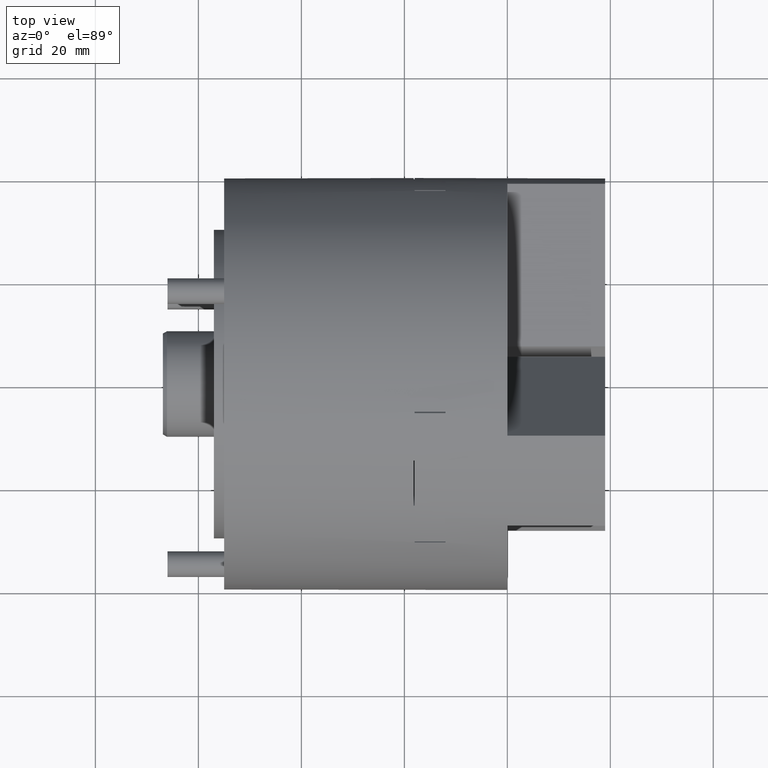
[diagram: clean part render]
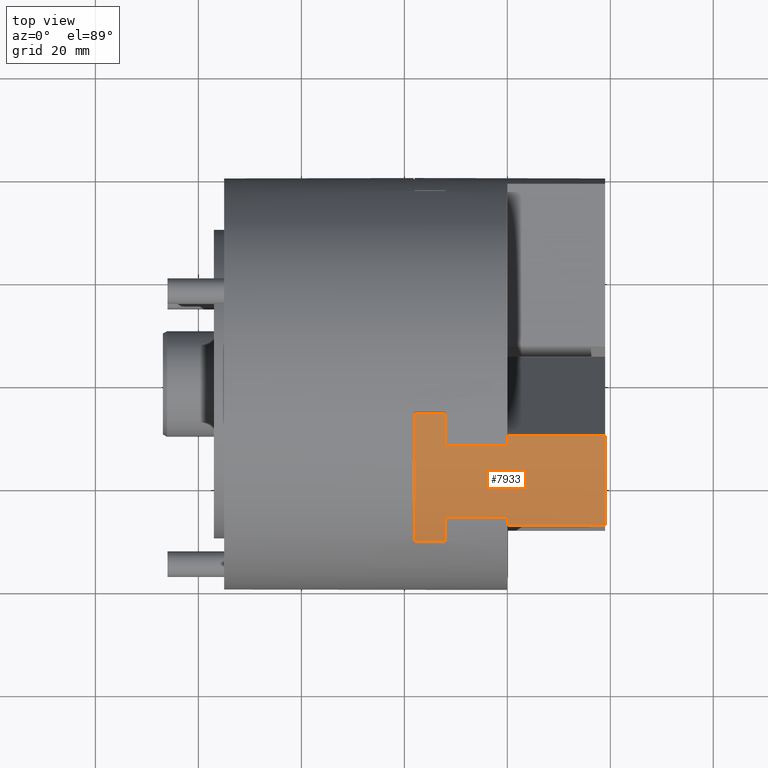
[diagram: same view with one face highlighted and labeled with its STEP entity id]
A machine part, top view. The second image highlights one B-rep face of the part: STEP entity #7933.
In plain terms, the highlighted cylindrical surface (partial cylindrical patch) has radius 40 mm, axis along (-1, 0, -0).
Its self-contained STEP definition (entity closure, byte-faithful):
#133=CYLINDRICAL_SURFACE('',#8600,40.);
#366=CIRCLE('',#8601,40.);
#367=CIRCLE('',#8602,40.);
#368=CIRCLE('',#8603,40.);
#369=CIRCLE('',#8604,40.);
#370=CIRCLE('',#8605,40.);
#371=CIRCLE('',#8606,40.);
#1646=ORIENTED_EDGE('',*,*,#3299,.T.);
#1647=ORIENTED_EDGE('',*,*,#3300,.T.);
#1648=ORIENTED_EDGE('',*,*,#3301,.T.);
#1649=ORIENTED_EDGE('',*,*,#3302,.T.);
#1650=ORIENTED_EDGE('',*,*,#3303,.F.);
#1651=ORIENTED_EDGE('',*,*,#3304,.F.);
#1652=ORIENTED_EDGE('',*,*,#3264,.T.);
#1653=ORIENTED_EDGE('',*,*,#3305,.T.);
#1654=ORIENTED_EDGE('',*,*,#3306,.T.);
#1655=ORIENTED_EDGE('',*,*,#3307,.T.);
#1656=ORIENTED_EDGE('',*,*,#3298,.T.);
#1657=ORIENTED_EDGE('',*,*,#3308,.T.);
#3264=EDGE_CURVE('',#4155,#4154,#4937,.T.);
#3298=EDGE_CURVE('',#4177,#4180,#4969,.T.);
#3299=EDGE_CURVE('',#4181,#4182,#4970,.T.);
#3300=EDGE_CURVE('',#4182,#4183,#366,.T.);
#3301=EDGE_CURVE('',#4183,#4184,#4971,.T.);
#3302=EDGE_CURVE('',#4184,#4185,#367,.T.);
#3303=EDGE_CURVE('',#4186,#4185,#4972,.T.);
#3304=EDGE_CURVE('',#4155,#4186,#368,.T.);
#3305=EDGE_CURVE('',#4154,#4187,#369,.T.);
#3306=EDGE_CURVE('',#4187,#4188,#4973,.T.);
#3307=EDGE_CURVE('',#4188,#4177,#370,.T.);
#3308=EDGE_CURVE('',#4180,#4181,#371,.T.);
#4154=VERTEX_POINT('',#12789);
#4155=VERTEX_POINT('',#12791);
#4177=VERTEX_POINT('',#12857);
#4180=VERTEX_POINT('',#12863);
#4181=VERTEX_POINT('',#12867);
#4182=VERTEX_POINT('',#12868);
#4183=VERTEX_POINT('',#12870);
#4184=VERTEX_POINT('',#12872);
#4185=VERTEX_POINT('',#12874);
#4186=VERTEX_POINT('',#12876);
#4187=VERTEX_POINT('',#12879);
#4188=VERTEX_POINT('',#12881);
#4937=LINE('',#12790,#5633);
#4969=LINE('',#12864,#5665);
#4970=LINE('',#12866,#5666);
#4971=LINE('',#12871,#5667);
#4972=LINE('',#12875,#5668);
#4973=LINE('',#12880,#5669);
#5633=VECTOR('',#10235,1000.);
#5665=VECTOR('',#10283,1000.);
#5666=VECTOR('',#10286,1000.);
#5667=VECTOR('',#10289,1000.);
#5668=VECTOR('',#10292,1000.);
#5669=VECTOR('',#10297,1000.);
#6156=EDGE_LOOP('',(#1646,#1647,#1648,#1649,#1650,#1651,#1652,#1653,#1654,
#1655,#1656,#1657));
#6895=FACE_BOUND('',#6156,.T.);
#7933=ADVANCED_FACE('',(#6895),#133,.T.);
#8600=AXIS2_PLACEMENT_3D('',#12865,#10284,#10285);
#8601=AXIS2_PLACEMENT_3D('',#12869,#10287,#10288);
#8602=AXIS2_PLACEMENT_3D('',#12873,#10290,#10291);
#8603=AXIS2_PLACEMENT_3D('',#12877,#10293,#10294);
#8604=AXIS2_PLACEMENT_3D('',#12878,#10295,#10296);
#8605=AXIS2_PLACEMENT_3D('',#12882,#10298,#10299);
#8606=AXIS2_PLACEMENT_3D('',#12883,#10300,#10301);
#10235=DIRECTION('',(-1.,3.94743360908282E-16,1.31757051362039E-16));
#10283=DIRECTION('',(-1.,6.10137973180356E-17,-1.08995869172918E-16));
#10284=DIRECTION('',(-1.,6.10137973180356E-17,-1.08995869172918E-16));
#10285=DIRECTION('',(-1.65843612768594E-18,0.866025403784436,0.500000000000004));
#10286=DIRECTION('',(1.,-6.10137973180356E-17,1.08995869172918E-16));
#10287=DIRECTION('',(-1.,1.81198965217008E-16,-3.96069301338454E-17));
#10288=DIRECTION('',(-1.3010426069826E-16,-0.866025403784436,-0.500000000000004));
#10289=DIRECTION('',(1.,-6.10137973180356E-17,1.08995869172918E-16));
#10290=DIRECTION('',(1.,-3.94743360908282E-16,-1.31757051362039E-16));
#10291=DIRECTION('',(-4.0773630420284E-16,-0.866025403784436,-0.500000000000004));
#10292=DIRECTION('',(-1.,3.94743360908282E-16,1.31757051362039E-16));
#10293=DIRECTION('',(1.,-3.94743360908282E-16,-1.31757051362039E-16));
#10294=DIRECTION('',(-4.33680868994202E-16,-0.866025403784436,-0.500000000000004));
#10295=DIRECTION('',(1.,-3.94743360908282E-16,-1.31757051362039E-16));
#10296=DIRECTION('',(-4.0773630420284E-16,-0.866025403784436,-0.500000000000004));
#10297=DIRECTION('',(-1.,6.10137973180356E-17,-1.08995869172918E-16));
#10298=DIRECTION('',(-1.,-5.91713705809367E-17,-1.78384808211991E-16));
#10299=DIRECTION('',(-1.3010426069826E-16,0.866025403784436,0.500000000000004));
#10300=DIRECTION('',(1.,-6.10137973180356E-17,1.08995869172918E-16));
#10301=DIRECTION('',(0.,-0.866025403784436,-0.500000000000004));
#12789=CARTESIAN_POINT('',(1.4032071523759E-14,-10.7047785388606,38.5412203130792));
#12790=CARTESIAN_POINT('',(19.,-10.7047785388606,38.5412203130792));
#12791=CARTESIAN_POINT('',(19.,-10.7047785388606,38.5412203130792));
#12857=CARTESIAN_POINT('',(-12.,-6.34706738425983,39.493443188601));
#12863=CARTESIAN_POINT('',(-18.,-6.34706738425983,39.493443188601));
#12864=CARTESIAN_POINT('',(6.93889390390723E-15,-6.34706738425984,39.493443188601));
#12865=CARTESIAN_POINT('',(1.04083408558608E-14,-0.000115845667724834,0.000200650582334212));
#12866=CARTESIAN_POINT('',(6.93889390390723E-15,-31.0287913921163,25.2434431886009));
#12867=CARTESIAN_POINT('',(-18.,-31.0287913921163,25.2434431886009));
#12868=CARTESIAN_POINT('',(-12.,-31.0287913921163,25.2434431886009));
#12869=CARTESIAN_POINT('',(-12.,-0.000115845667723966,0.000200650582333345));
#12870=CARTESIAN_POINT('',(-12.,-26.5242370182088,29.9413261475365));
#12871=CARTESIAN_POINT('',(3.46944695195361E-15,-26.5242370182088,29.9413261475365));
#12872=CARTESIAN_POINT('',(6.73149047656677E-15,-26.5242370182088,29.9413261475365));
#12873=CARTESIAN_POINT('',(1.32567568034147E-14,-0.000115845667731337,0.000200650582335404));
#12874=CARTESIAN_POINT('',(6.28262283308533E-15,-28.0252866145493,28.5412203130791));
#12875=CARTESIAN_POINT('',(19.,-28.0252866145494,28.5412203130791));
#12876=CARTESIAN_POINT('',(19.,-28.0252866145494,28.5412203130791));
#12877=CARTESIAN_POINT('',(19.,-0.000115845667738838,0.0002006505823329));
#12878=CARTESIAN_POINT('',(1.32567568034147E-14,-0.000115845667731337,0.000200650582335404));
#12879=CARTESIAN_POINT('',(1.32552713438122E-14,-12.6678305576578,37.9413261475366));
#12880=CARTESIAN_POINT('',(3.46944695195361E-15,-12.6678305576578,37.9413261475366));
#12881=CARTESIAN_POINT('',(-12.,-12.6678305576578,37.9413261475366));
#12882=CARTESIAN_POINT('',(-12.,-0.000115845667723966,0.000200650582333345));
#12883=CARTESIAN_POINT('',(-18.,-0.000115845667723533,0.000200650582332478));